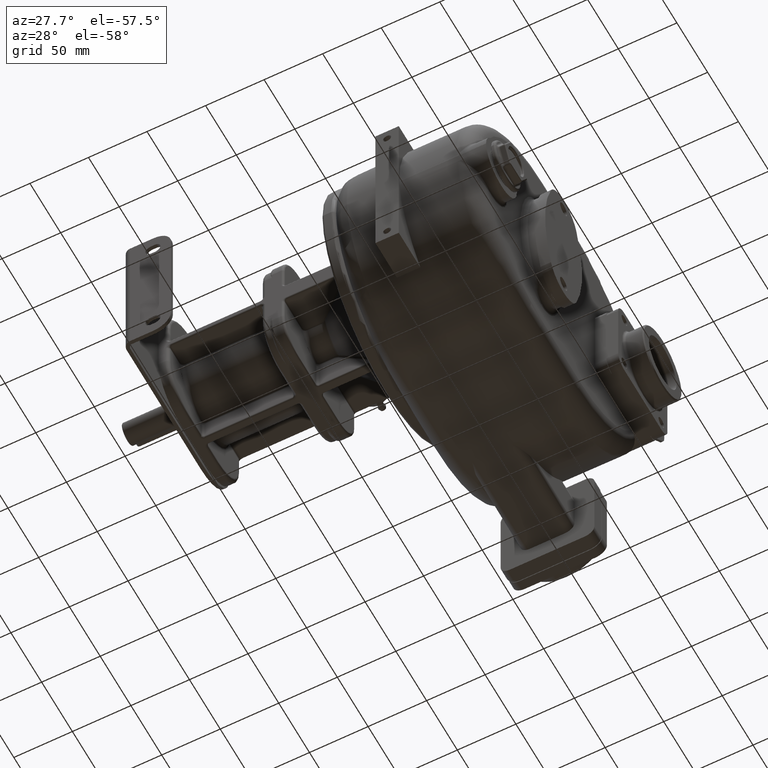
[diagram: clean part render]
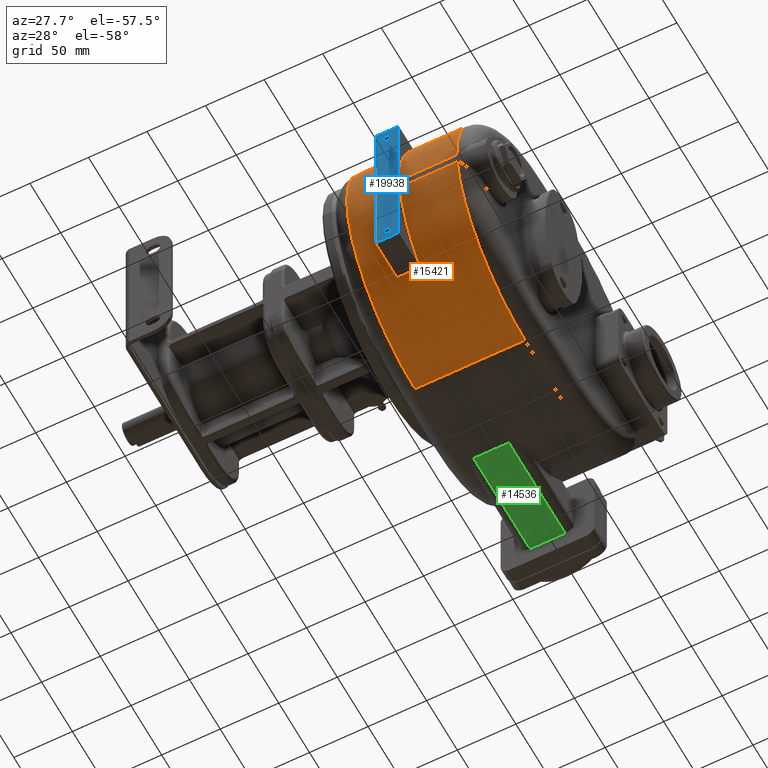
[diagram: same view with three faces highlighted in distinct colors, each labeled with its STEP entity id]
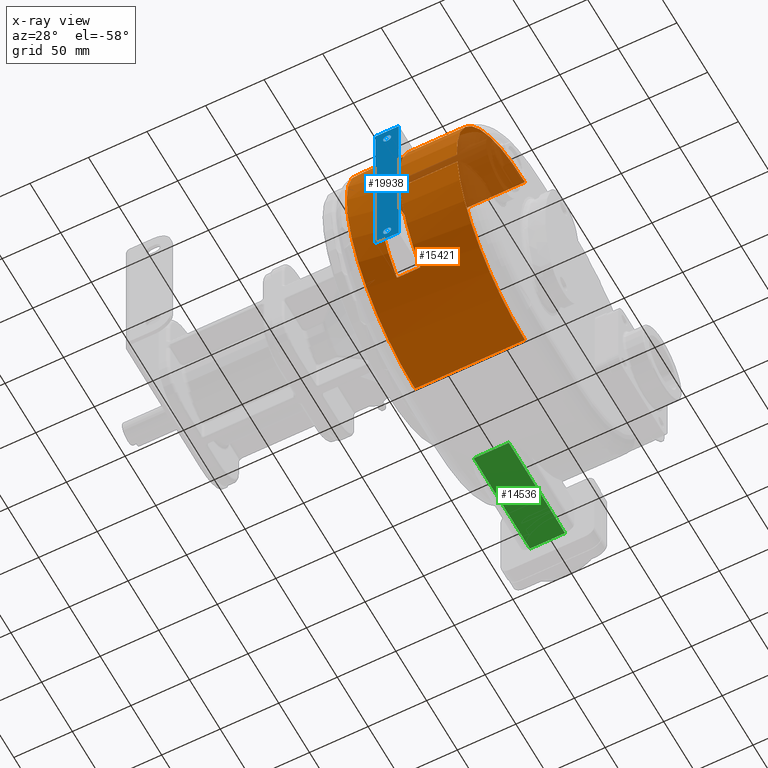
[diagram: x-ray of the same camera — body ghosted, the three highlighted faces saturated]
A machine part, auxiliary view with three faces highlighted in distinct colors.
The next image is the same camera in x-ray (body ghosted, the three faces saturated) — at least one of them is partly hidden behind the body in this view.
Their STEP definitions:

[orange] entity #15421 — the highlighted cylindrical surface (partial cylindrical patch) has radius 111 mm, axis along (-1, 0, 0).
#1850=DIRECTION('',(-1.E0,-1.355777005402E-9,-1.653482249079E-10));
#1851=VECTOR('',#1850,4.9E1);
#1852=CARTESIAN_POINT('',(5.9E1,1.816361277381E0,-1.343747532038E1));
#1853=LINE('',#1852,#1851);
#1854=CARTESIAN_POINT('',(5.9E1,1.12E2,0.E0));
#1855=DIRECTION('',(1.E0,0.E0,0.E0));
#1856=DIRECTION('',(0.E0,-9.926453944960E-1,-1.210583362927E-1));
#1857=AXIS2_PLACEMENT_3D('',#1854,#1855,#1856);
#1859=DIRECTION('',(1.E0,-7.770616301717E-14,0.E0));
#1860=VECTOR('',#1859,9.4E1);
#1861=CARTESIAN_POINT('',(-3.5E1,1.12E2,-1.11E2));
#1862=LINE('',#1861,#1860);
#1863=CARTESIAN_POINT('',(-3.5E1,1.12E2,0.E0));
#1864=DIRECTION('',(-1.E0,0.E0,0.E0));
#1865=DIRECTION('',(0.E0,0.E0,-1.E0));
#1866=AXIS2_PLACEMENT_3D('',#1863,#1864,#1865);
#1868=CARTESIAN_POINT('',(5.9E1,1.12E2,0.E0));
#1869=DIRECTION('',(1.E0,0.E0,0.E0));
#1870=DIRECTION('',(0.E0,0.E0,1.E0));
#1871=AXIS2_PLACEMENT_3D('',#1868,#1869,#1870);
#1873=DIRECTION('',(1.E0,3.053099366990E-7,1.245607863646E-8));
#1874=VECTOR('',#1873,4.899999999683E1);
#1875=CARTESIAN_POINT('',(1.E1,1.093631366197E0,-4.558222950119E0));
#1876=LINE('',#1875,#1874);
#1877=CARTESIAN_POINT('',(1.E1,1.12E2,0.E0));
#1878=DIRECTION('',(-1.E0,0.E0,0.E0));
#1879=DIRECTION('',(0.E0,-9.991564741784E-1,-4.106507162270E-2));
#1880=AXIS2_PLACEMENT_3D('',#1877,#1878,#1879);
#1882=DIRECTION('',(-1.E0,0.E0,0.E0));
#1883=VECTOR('',#1882,2.E1);
#1884=CARTESIAN_POINT('',(1.E1,2.585477378287E1,7.E1));
#1885=LINE('',#1884,#1883);
#1886=CARTESIAN_POINT('',(-1.E1,1.12E2,0.E0));
#1887=DIRECTION('',(-1.E0,0.E0,0.E0));
#1888=DIRECTION('',(0.E0,-6.932255352508E-1,-7.207207207207E-1));
#1889=AXIS2_PLACEMENT_3D('',#1886,#1887,#1888);
#1891=DIRECTION('',(-1.E0,0.E0,0.E0));
#1892=VECTOR('',#1891,2.E1);
#1893=CARTESIAN_POINT('',(1.E1,3.505196558716E1,-8.E1));
#1894=LINE('',#1893,#1892);
#1895=CARTESIAN_POINT('',(1.E1,1.12E2,0.E0));
#1896=DIRECTION('',(-1.E0,0.E0,0.E0));
#1897=DIRECTION('',(0.E0,-6.932255352508E-1,-7.207207207207E-1));
#1898=AXIS2_PLACEMENT_3D('',#1895,#1896,#1897);
#1957=CARTESIAN_POINT('',(5.9E1,1.816361277381E0,-1.343747532038E1));
#2032=DIRECTION('',(1.E0,1.454344918726E-13,0.E0));
#2033=VECTOR('',#2032,9.4E1);
#2034=CARTESIAN_POINT('',(-3.5E1,1.12E2,1.11E2));
#2035=LINE('',#2034,#2033);
#3423=CARTESIAN_POINT('',(5.899999999683E1,1.093646326384E0,-4.558222339772E0));
#11611=CARTESIAN_POINT('',(-1.E1,3.505196558716E1,-8.E1));
#11612=VERTEX_POINT('',#11611);
#11613=CARTESIAN_POINT('',(1.E1,3.505196558716E1,-8.E1));
#11614=VERTEX_POINT('',#11613);
#11615=CARTESIAN_POINT('',(1.E1,2.585477378287E1,7.E1));
#11616=VERTEX_POINT('',#11615);
#11617=CARTESIAN_POINT('',(-1.E1,2.585477378287E1,7.E1));
#11618=VERTEX_POINT('',#11617);
#11709=CARTESIAN_POINT('',(5.9E1,1.12E2,-1.11E2));
#11710=VERTEX_POINT('',#11709);
#11716=CARTESIAN_POINT('',(5.9E1,1.12E2,1.11E2));
#11718=VERTEX_POINT('',#11716);
#11739=CARTESIAN_POINT('',(-3.5E1,1.12E2,-1.11E2));
#11740=VERTEX_POINT('',#11739);
#11741=CARTESIAN_POINT('',(-3.5E1,1.12E2,1.11E2));
#11742=VERTEX_POINT('',#11741);
#11768=VERTEX_POINT('',#1957);
#11771=VERTEX_POINT('',#3423);
#11795=CARTESIAN_POINT('',(1.E1,1.816361210948E0,-1.343747532849E1));
#11796=VERTEX_POINT('',#11795);
#11801=CARTESIAN_POINT('',(1.E1,1.093631366197E0,-4.558222950120E0));
#11802=VERTEX_POINT('',#11801);
#15391=CARTESIAN_POINT('',(-5.E1,1.12E2,0.E0));
#15392=DIRECTION('',(-1.E0,0.E0,0.E0));
#15393=DIRECTION('',(0.E0,0.E0,1.E0));
#15394=AXIS2_PLACEMENT_3D('',#15391,#15392,#15393);
#15395=CYLINDRICAL_SURFACE('',#15394,1.11E2);
#15396=ORIENTED_EDGE('',*,*,#15382,.F.);
#15398=ORIENTED_EDGE('',*,*,#15397,.T.);
#15400=ORIENTED_EDGE('',*,*,#15399,.F.);
#15402=ORIENTED_EDGE('',*,*,#15401,.T.);
#15404=ORIENTED_EDGE('',*,*,#15403,.T.);
#15406=ORIENTED_EDGE('',*,*,#15405,.T.);
#15408=ORIENTED_EDGE('',*,*,#15407,.F.);
#15410=ORIENTED_EDGE('',*,*,#15409,.T.);
#15412=ORIENTED_EDGE('',*,*,#15411,.T.);
#15414=ORIENTED_EDGE('',*,*,#15413,.F.);
#15416=ORIENTED_EDGE('',*,*,#15415,.F.);
#15418=ORIENTED_EDGE('',*,*,#15417,.T.);
#15419=EDGE_LOOP('',(#15396,#15398,#15400,#15402,#15404,#15406,#15408,#15410,
#15412,#15414,#15416,#15418));
#15420=FACE_OUTER_BOUND('',#15419,.F.);
#15421=ADVANCED_FACE('',(#15420),#15395,.T.);
#1858=CIRCLE('',#1857,1.11E2);
#1867=CIRCLE('',#1866,1.11E2);
#1872=CIRCLE('',#1871,1.11E2);
#1881=CIRCLE('',#1880,1.11E2);
#1890=CIRCLE('',#1889,1.11E2);
#1899=CIRCLE('',#1898,1.11E2);
#15382=EDGE_CURVE('',#11768,#11796,#1853,.T.);
#15397=EDGE_CURVE('',#11768,#11710,#1858,.T.);
#15399=EDGE_CURVE('',#11740,#11710,#1862,.T.);
#15401=EDGE_CURVE('',#11740,#11742,#1867,.T.);
#15403=EDGE_CURVE('',#11742,#11718,#2035,.T.);
#15405=EDGE_CURVE('',#11718,#11771,#1872,.T.);
#15407=EDGE_CURVE('',#11802,#11771,#1876,.T.);
#15409=EDGE_CURVE('',#11802,#11616,#1881,.T.);
#15411=EDGE_CURVE('',#11616,#11618,#1885,.T.);
#15413=EDGE_CURVE('',#11612,#11618,#1890,.T.);
#15415=EDGE_CURVE('',#11614,#11612,#1894,.T.);
#15417=EDGE_CURVE('',#11614,#11796,#1899,.T.);

[blue] entity #19938 — the highlighted planar face has unit normal (0, -1, 0).
#4721=DIRECTION('',(1.E0,0.E0,0.E0));
#4722=VECTOR('',#4721,2.E1);
#4723=CARTESIAN_POINT('',(-1.E1,0.E0,-8.E1));
#4724=LINE('',#4723,#4722);
#4725=DIRECTION('',(0.E0,0.E0,-1.E0));
#4726=VECTOR('',#4725,1.5E2);
#4727=CARTESIAN_POINT('',(-1.E1,0.E0,7.E1));
#4728=LINE('',#4727,#4726);
#4729=DIRECTION('',(-1.E0,0.E0,0.E0));
#4730=VECTOR('',#4729,2.E1);
#4731=CARTESIAN_POINT('',(1.E1,0.E0,7.E1));
#4732=LINE('',#4731,#4730);
#4733=DIRECTION('',(0.E0,0.E0,1.E0));
#4734=VECTOR('',#4733,1.5E2);
#4735=CARTESIAN_POINT('',(1.E1,0.E0,-8.E1));
#4736=LINE('',#4735,#4734);
#4737=CARTESIAN_POINT('',(0.E0,0.E0,6.E1));
#4738=DIRECTION('',(0.E0,-1.E0,0.E0));
#4739=DIRECTION('',(-1.E0,0.E0,0.E0));
#4740=AXIS2_PLACEMENT_3D('',#4737,#4738,#4739);
#4742=CARTESIAN_POINT('',(0.E0,0.E0,6.E1));
#4743=DIRECTION('',(0.E0,-1.E0,0.E0));
#4744=DIRECTION('',(1.E0,0.E0,0.E0));
#4745=AXIS2_PLACEMENT_3D('',#4742,#4743,#4744);
#4747=CARTESIAN_POINT('',(0.E0,0.E0,-7.E1));
#4748=DIRECTION('',(0.E0,-1.E0,0.E0));
#4749=DIRECTION('',(-1.E0,0.E0,0.E0));
#4750=AXIS2_PLACEMENT_3D('',#4747,#4748,#4749);
#4752=CARTESIAN_POINT('',(0.E0,0.E0,-7.E1));
#4753=DIRECTION('',(0.E0,-1.E0,0.E0));
#4754=DIRECTION('',(1.E0,0.E0,0.E0));
#4755=AXIS2_PLACEMENT_3D('',#4752,#4753,#4754);
#11589=CARTESIAN_POINT('',(-3.5E0,0.E0,6.E1));
#11590=CARTESIAN_POINT('',(3.5E0,0.E0,6.E1));
#11591=VERTEX_POINT('',#11589);
#11592=VERTEX_POINT('',#11590);
#11599=CARTESIAN_POINT('',(-3.5E0,0.E0,-7.E1));
#11600=VERTEX_POINT('',#11599);
#11601=CARTESIAN_POINT('',(3.5E0,0.E0,-7.E1));
#11602=VERTEX_POINT('',#11601);
#11603=CARTESIAN_POINT('',(-1.E1,0.E0,-8.E1));
#11604=CARTESIAN_POINT('',(1.E1,0.E0,-8.E1));
#11605=VERTEX_POINT('',#11603);
#11606=VERTEX_POINT('',#11604);
#11607=CARTESIAN_POINT('',(1.E1,0.E0,7.E1));
#11608=VERTEX_POINT('',#11607);
#11609=CARTESIAN_POINT('',(-1.E1,0.E0,7.E1));
#11610=VERTEX_POINT('',#11609);
#19915=CARTESIAN_POINT('',(-5.E1,0.E0,0.E0));
#19916=DIRECTION('',(0.E0,-1.E0,0.E0));
#19917=DIRECTION('',(0.E0,0.E0,1.E0));
#19918=AXIS2_PLACEMENT_3D('',#19915,#19916,#19917);
#19919=PLANE('',#19918);
#19920=ORIENTED_EDGE('',*,*,#19881,.F.);
#19921=ORIENTED_EDGE('',*,*,#19897,.F.);
#19922=ORIENTED_EDGE('',*,*,#19908,.F.);
#19923=ORIENTED_EDGE('',*,*,#19862,.F.);
#19924=EDGE_LOOP('',(#19920,#19921,#19922,#19923));
#19925=FACE_OUTER_BOUND('',#19924,.F.);
#19927=ORIENTED_EDGE('',*,*,#19926,.T.);
#19929=ORIENTED_EDGE('',*,*,#19928,.T.);
#19930=EDGE_LOOP('',(#19927,#19929));
#19931=FACE_BOUND('',#19930,.F.);
#19933=ORIENTED_EDGE('',*,*,#19932,.T.);
#19935=ORIENTED_EDGE('',*,*,#19934,.T.);
#19936=EDGE_LOOP('',(#19933,#19935));
#19937=FACE_BOUND('',#19936,.F.);
#19938=ADVANCED_FACE('',(#19925,#19931,#19937),#19919,.T.);
#4741=CIRCLE('',#4740,3.5E0);
#4746=CIRCLE('',#4745,3.5E0);
#4751=CIRCLE('',#4750,3.5E0);
#4756=CIRCLE('',#4755,3.5E0);
#19862=EDGE_CURVE('',#11606,#11608,#4736,.T.);
#19881=EDGE_CURVE('',#11605,#11606,#4724,.T.);
#19897=EDGE_CURVE('',#11610,#11605,#4728,.T.);
#19908=EDGE_CURVE('',#11608,#11610,#4732,.T.);
#19926=EDGE_CURVE('',#11591,#11592,#4741,.T.);
#19928=EDGE_CURVE('',#11592,#11591,#4746,.T.);
#19932=EDGE_CURVE('',#11600,#11602,#4751,.T.);
#19934=EDGE_CURVE('',#11602,#11600,#4756,.T.);

[green] entity #14536 — the highlighted planar face has unit normal (0, 0, -1).
#713=DIRECTION('',(1.E0,0.E0,0.E0));
#714=VECTOR('',#713,3.E1);
#715=CARTESIAN_POINT('',(-2.5E1,2.8E2,-1.1E2));
#716=LINE('',#715,#714);
#834=DIRECTION('',(0.E0,1.E0,0.E0));
#835=VECTOR('',#834,9.146493355519E1);
#836=CARTESIAN_POINT('',(5.E0,1.885350664448E2,-1.1E2));
#837=LINE('',#836,#835);
#838=DIRECTION('',(0.E0,1.E0,0.E0));
#839=VECTOR('',#838,9.146493355519E1);
#840=CARTESIAN_POINT('',(-2.5E1,1.885350664448E2,-1.1E2));
#841=LINE('',#840,#839);
#971=DIRECTION('',(-1.E0,0.E0,0.E0));
#972=VECTOR('',#971,3.E1);
#973=CARTESIAN_POINT('',(5.E0,1.885350664448E2,-1.1E2));
#974=LINE('',#973,#972);
#11619=CARTESIAN_POINT('',(5.E0,1.885350664448E2,-1.1E2));
#11620=CARTESIAN_POINT('',(5.E0,2.8E2,-1.1E2));
#11621=VERTEX_POINT('',#11619);
#11622=VERTEX_POINT('',#11620);
#11647=CARTESIAN_POINT('',(-2.5E1,1.885350664448E2,-1.1E2));
#11648=CARTESIAN_POINT('',(-2.5E1,2.8E2,-1.1E2));
#11649=VERTEX_POINT('',#11647);
#11650=VERTEX_POINT('',#11648);
#14523=CARTESIAN_POINT('',(-3.3E1,1.1E2,-1.1E2));
#14524=DIRECTION('',(0.E0,0.E0,-1.E0));
#14525=DIRECTION('',(1.E0,0.E0,0.E0));
#14526=AXIS2_PLACEMENT_3D('',#14523,#14524,#14525);
#14527=PLANE('',#14526);
#14528=ORIENTED_EDGE('',*,*,#14514,.T.);
#14529=ORIENTED_EDGE('',*,*,#14419,.F.);
#14531=ORIENTED_EDGE('',*,*,#14530,.F.);
#14533=ORIENTED_EDGE('',*,*,#14532,.F.);
#14534=EDGE_LOOP('',(#14528,#14529,#14531,#14533));
#14535=FACE_OUTER_BOUND('',#14534,.F.);
#14536=ADVANCED_FACE('',(#14535),#14527,.T.);
#14419=EDGE_CURVE('',#11650,#11622,#716,.T.);
#14514=EDGE_CURVE('',#11621,#11622,#837,.T.);
#14530=EDGE_CURVE('',#11649,#11650,#841,.T.);
#14532=EDGE_CURVE('',#11621,#11649,#974,.T.);